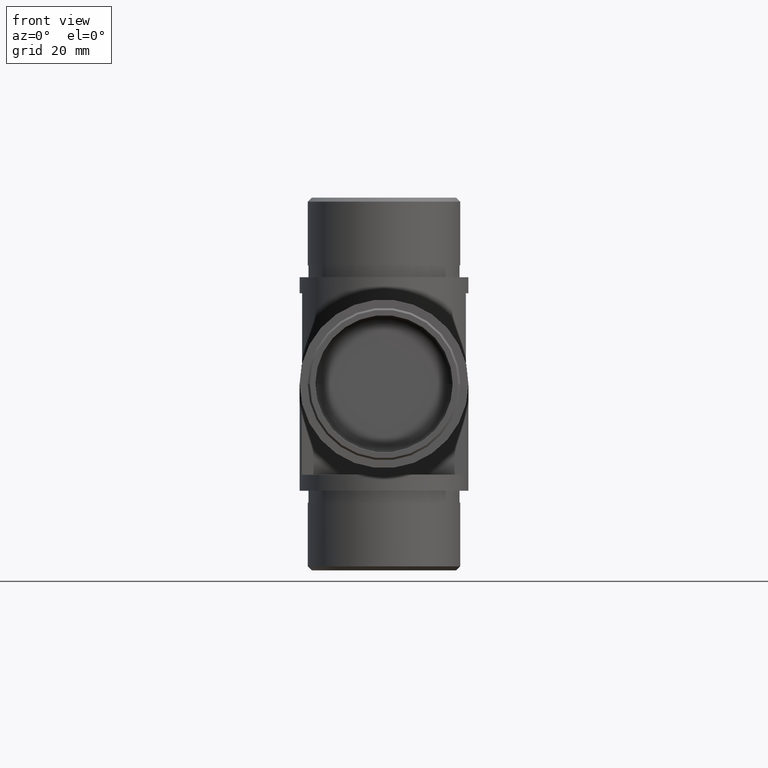
[diagram: clean part render]
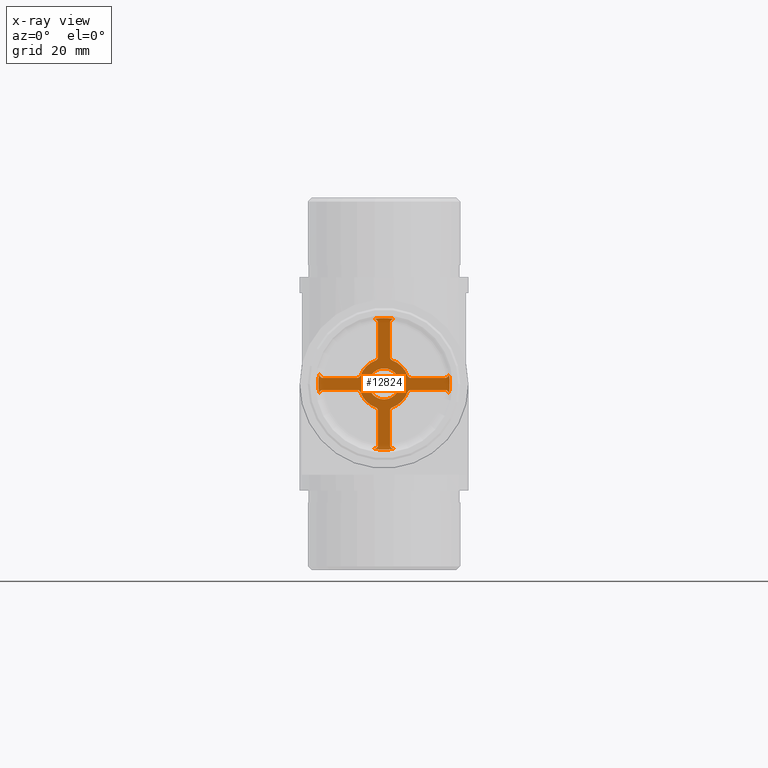
[diagram: x-ray — body ghosted, one internal face saturated and labeled with its STEP entity id]
A machine part, front view, then the same camera in x-ray: the body is ghosted and one INTERNAL B-rep face — a face not visible from any outside direction — is saturated and labeled: STEP entity #12824.
In plain terms, the highlighted planar face has unit normal (0, 1, 0).
Its self-contained STEP definition (entity closure, byte-faithful):
#199 = CIRCLE ( 'NONE', #3451, 1.000000000000000888 ) ;
#214 = EDGE_CURVE ( 'NONE', #2357, #17163, #1232, .T. ) ;
#229 = DIRECTION ( 'NONE',  ( -0.000000000000000000, -1.000000000000000000, -0.000000000000000000 ) ) ;
#329 = CARTESIAN_POINT ( 'NONE',  ( 2.500000000000000000, 4.399999999999987033, 43.09705854077836307 ) ) ;
#563 = DIRECTION ( 'NONE',  ( -1.000000000000000000, 0.000000000000000000, 0.000000000000000000 ) ) ;
#607 = DIRECTION ( 'NONE',  ( -0.000000000000000000, -1.000000000000000000, -0.000000000000000000 ) ) ;
#615 = EDGE_CURVE ( 'NONE', #10342, #14932, #199, .T. ) ;
#671 = DIRECTION ( 'NONE',  ( -0.000000000000000000, -1.000000000000000000, -0.000000000000000000 ) ) ;
#691 = CIRCLE ( 'NONE', #18658, 1.000000000000000888 ) ;
#764 = CARTESIAN_POINT ( 'NONE',  ( -1.500000000000000000, 4.399999999999987033, 42.09705854077835596 ) ) ;
#960 = CIRCLE ( 'NONE', #9515, 1.000000000000000888 ) ;
#990 = VERTEX_POINT ( 'NONE', #16222 ) ;
#1020 = DIRECTION ( 'NONE',  ( 0.000000000000000000, 0.000000000000000000, 1.000000000000000000 ) ) ;
#1075 = CIRCLE ( 'NONE', #6403, 1.000000000000000888 ) ;
#1156 = CARTESIAN_POINT ( 'NONE',  ( 0.000000000000000000, 4.399999999999987033, 26.80000000000000071 ) ) ;
#1169 = AXIS2_PLACEMENT_3D ( 'NONE', #11545, #8238, #16522 ) ;
#1209 = DIRECTION ( 'NONE',  ( -4.184353375069490414E-17, 0.000000000000000000, 1.000000000000000000 ) ) ;
#1214 = VERTEX_POINT ( 'NONE', #2661 ) ;
#1232 = CIRCLE ( 'NONE', #14119, 1.000000000000000888 ) ;
#1239 = DIRECTION ( 'NONE',  ( 0.000000000000000000, 1.000000000000000000, 0.000000000000000000 ) ) ;
#1395 = ORIENTED_EDGE ( 'NONE', *, *, #11933, .T. ) ;
#1443 = DIRECTION ( 'NONE',  ( -0.000000000000000000, -1.000000000000000000, -0.000000000000000000 ) ) ;
#1467 = CARTESIAN_POINT ( 'NONE',  ( -1.500000000000000000, 4.399999999999987033, 19.99467120559190292 ) ) ;
#1478 = EDGE_CURVE ( 'NONE', #10090, #17163, #18030, .T. ) ;
#1525 = CARTESIAN_POINT ( 'NONE',  ( -16.28396554340921654, 4.399999999999987033, 29.46129032258065195 ) ) ;
#1545 = CARTESIAN_POINT ( 'NONE',  ( 0.000000000000000000, 4.399999999999987033, 26.80000000000000071 ) ) ;
#1546 = CARTESIAN_POINT ( 'NONE',  ( 0.000000000000000000, 4.399999999999987033, 26.80000000000000071 ) ) ;
#1739 = DIRECTION ( 'NONE',  ( 0.000000000000000000, 0.000000000000000000, 1.000000000000000000 ) ) ;
#1750 = DIRECTION ( 'NONE',  ( 0.000000000000000000, 1.000000000000000000, 0.000000000000000000 ) ) ;
#1824 = CARTESIAN_POINT ( 'NONE',  ( -6.805328794408099569, 4.399999999999987033, 25.30000000000000071 ) ) ;
#1960 = CIRCLE ( 'NONE', #13795, 1.000000000000000888 ) ;
#2091 = VERTEX_POINT ( 'NONE', #20215 ) ;
#2215 = CARTESIAN_POINT ( 'NONE',  ( -6.805328794408099569, 4.399999999999987033, 29.30000000000000426 ) ) ;
#2229 = DIRECTION ( 'NONE',  ( -0.000000000000000000, -1.000000000000000000, -0.000000000000000000 ) ) ;
#2251 = CARTESIAN_POINT ( 'NONE',  ( 2.500000000000000000, 4.399999999999987033, 42.09705854077835596 ) ) ;
#2274 = DIRECTION ( 'NONE',  ( -0.000000000000000000, -1.000000000000000000, -0.000000000000000000 ) ) ;
#2349 = CARTESIAN_POINT ( 'NONE',  ( 5.866662753800086172, 4.399999999999987033, 28.95517241379310391 ) ) ;
#2357 = VERTEX_POINT ( 'NONE', #1467 ) ;
#2425 = ORIENTED_EDGE ( 'NONE', *, *, #14209, .T. ) ;
#2478 = VERTEX_POINT ( 'NONE', #1824 ) ;
#2542 = VERTEX_POINT ( 'NONE', #12023 ) ;
#2661 = CARTESIAN_POINT ( 'NONE',  ( 16.28396554340921654, 4.399999999999987033, 29.46129032258065195 ) ) ;
#2663 = AXIS2_PLACEMENT_3D ( 'NONE', #1545, #4592, #9593 ) ;
#2664 = CARTESIAN_POINT ( 'NONE',  ( -2.500000000000000000, 4.399999999999987033, 19.99467120559190292 ) ) ;
#2758 = DIRECTION ( 'NONE',  ( 0.000000000000000000, 0.000000000000000000, 1.000000000000000000 ) ) ;
#2909 = CARTESIAN_POINT ( 'NONE',  ( 0.000000000000000000, 4.399999999999987033, 26.80000000000000071 ) ) ;
#2962 = CIRCLE ( 'NONE', #11202, 6.250000000000001776 ) ;
#2988 = DIRECTION ( 'NONE',  ( 0.000000000000000000, 0.000000000000000000, 1.000000000000000000 ) ) ;
#3016 = CARTESIAN_POINT ( 'NONE',  ( 16.28396554340921654, 4.399999999999987033, 24.13870967741934948 ) ) ;
#3090 = EDGE_CURVE ( 'NONE', #14272, #6297, #8728, .T. ) ;
#3187 = VERTEX_POINT ( 'NONE', #1525 ) ;
#3194 = CARTESIAN_POINT ( 'NONE',  ( 2.155172413793103647, 4.399999999999987033, 20.93333724619991543 ) ) ;
#3253 = AXIS2_PLACEMENT_3D ( 'NONE', #17793, #1443, #7986 ) ;
#3254 = EDGE_CURVE ( 'NONE', #12983, #20630, #4285, .T. ) ;
#3259 = CARTESIAN_POINT ( 'NONE',  ( 6.805328794408099569, 4.399999999999987033, 24.29999999999999716 ) ) ;
#3284 = ORIENTED_EDGE ( 'NONE', *, *, #214, .T. ) ;
#3336 = ORIENTED_EDGE ( 'NONE', *, *, #5516, .F. ) ;
#3375 = DIRECTION ( 'NONE',  ( 0.000000000000000000, 0.000000000000000000, 1.000000000000000000 ) ) ;
#3451 = AXIS2_PLACEMENT_3D ( 'NONE', #2215, #607, #17028 ) ;
#3454 = ORIENTED_EDGE ( 'NONE', *, *, #13677, .T. ) ;
#3572 = CARTESIAN_POINT ( 'NONE',  ( 6.805328794408099569, 4.399999999999987033, 25.30000000000000071 ) ) ;
#3609 = DIRECTION ( 'NONE',  ( 0.000000000000000000, -0.000000000000000000, 1.000000000000000000 ) ) ;
#3620 = CIRCLE ( 'NONE', #19741, 16.50000000000000355 ) ;
#3640 = LINE ( 'NONE', #8051, #19939 ) ;
#3691 = DIRECTION ( 'NONE',  ( 0.000000000000000000, 0.000000000000000000, 1.000000000000000000 ) ) ;
#3742 = DIRECTION ( 'NONE',  ( 0.000000000000000000, 0.000000000000000000, 1.000000000000000000 ) ) ;
#3831 = EDGE_CURVE ( 'NONE', #9212, #12983, #12310, .T. ) ;
#4041 = AXIS2_PLACEMENT_3D ( 'NONE', #14907, #9881, #16569 ) ;
#4075 = VERTEX_POINT ( 'NONE', #329 ) ;
#4085 = CARTESIAN_POINT ( 'NONE',  ( -1.500000000000000000, 4.399999999999987033, 11.50294145922164546 ) ) ;
#4241 = CARTESIAN_POINT ( 'NONE',  ( 1.500000000000000000, 4.399999999999987033, 0.000000000000000000 ) ) ;
#4255 = CARTESIAN_POINT ( 'NONE',  ( 2.500000000000000000, 4.399999999999987033, 42.09705854077835596 ) ) ;
#4285 = CIRCLE ( 'NONE', #20507, 1.000000000000000888 ) ;
#4330 = CIRCLE ( 'NONE', #20715, 1.000000000000000888 ) ;
#4338 = CIRCLE ( 'NONE', #9110, 3.900000000000014566 ) ;
#4392 = EDGE_CURVE ( 'NONE', #12145, #14078, #18645, .T. ) ;
#4522 = CARTESIAN_POINT ( 'NONE',  ( 0.000000000000000000, 4.399999999999987033, 26.80000000000000071 ) ) ;
#4524 = EDGE_CURVE ( 'NONE', #11375, #10540, #12405, .T. ) ;
#4557 = DIRECTION ( 'NONE',  ( -0.000000000000000000, -1.000000000000000000, -0.000000000000000000 ) ) ;
#4588 = ORIENTED_EDGE ( 'NONE', *, *, #16848, .T. ) ;
#4592 = DIRECTION ( 'NONE',  ( 0.000000000000000000, 1.000000000000000000, 0.000000000000000000 ) ) ;
#4866 = CARTESIAN_POINT ( 'NONE',  ( 0.000000000000000000, 4.399999999999987033, 26.80000000000000071 ) ) ;
#4999 = DIRECTION ( 'NONE',  ( -1.776356839400249873E-15, 0.000000000000000000, 1.000000000000000000 ) ) ;
#5011 = CARTESIAN_POINT ( 'NONE',  ( 1.499999999999999556, 4.399999999999987033, 33.60532879440810206 ) ) ;
#5071 = ORIENTED_EDGE ( 'NONE', *, *, #18911, .T. ) ;
#5148 = CARTESIAN_POINT ( 'NONE',  ( 0.000000000000000000, 4.399999999999987033, 26.80000000000000071 ) ) ;
#5155 = AXIS2_PLACEMENT_3D ( 'NONE', #8776, #6899, #3691 ) ;
#5196 = CIRCLE ( 'NONE', #14701, 1.000000000000000888 ) ;
#5252 = CARTESIAN_POINT ( 'NONE',  ( 0.000000000000000000, 4.399999999999987033, 26.80000000000000071 ) ) ;
#5328 = EDGE_CURVE ( 'NONE', #15475, #6430, #16509, .T. ) ;
#5443 = AXIS2_PLACEMENT_3D ( 'NONE', #1546, #16578, #6483 ) ;
#5516 = EDGE_CURVE ( 'NONE', #19845, #9931, #8016, .T. ) ;
#5620 = EDGE_CURVE ( 'NONE', #5775, #1214, #16253, .T. ) ;
#5659 = CARTESIAN_POINT ( 'NONE',  ( 0.000000000000000000, 4.399999999999987033, 25.30000000000000071 ) ) ;
#5693 = AXIS2_PLACEMENT_3D ( 'NONE', #4522, #16079, #11177 ) ;
#5707 = CARTESIAN_POINT ( 'NONE',  ( 0.000000000000000000, 4.399999999999987033, 28.30000000000000071 ) ) ;
#5775 = VERTEX_POINT ( 'NONE', #10846 ) ;
#5802 = VERTEX_POINT ( 'NONE', #10706 ) ;
#5810 = VERTEX_POINT ( 'NONE', #15683 ) ;
#5867 = AXIS2_PLACEMENT_3D ( 'NONE', #11580, #6751, #4999 ) ;
#6181 = CARTESIAN_POINT ( 'NONE',  ( 1.500000000000000000, 4.399999999999987033, 42.09705854077835596 ) ) ;
#6257 = LINE ( 'NONE', #6569, #14771 ) ;
#6297 = VERTEX_POINT ( 'NONE', #17177 ) ;
#6373 = CARTESIAN_POINT ( 'NONE',  ( -2.661290322580645462, 4.399999999999987033, 10.51603445659078240 ) ) ;
#6375 = ORIENTED_EDGE ( 'NONE', *, *, #4524, .T. ) ;
#6403 = AXIS2_PLACEMENT_3D ( 'NONE', #15908, #4557, #2758 ) ;
#6405 = EDGE_CURVE ( 'NONE', #21089, #14663, #14933, .T. ) ;
#6430 = VERTEX_POINT ( 'NONE', #3572 ) ;
#6483 = DIRECTION ( 'NONE',  ( 2.664535259100375303E-15, 0.000000000000000000, 1.000000000000000000 ) ) ;
#6502 = DIRECTION ( 'NONE',  ( -0.000000000000000000, -1.000000000000000000, -0.000000000000000000 ) ) ;
#6569 = CARTESIAN_POINT ( 'NONE',  ( 1.499999999999998224, 4.399999999999987033, 0.000000000000000000 ) ) ;
#6646 = ORIENTED_EDGE ( 'NONE', *, *, #20550, .T. ) ;
#6751 = DIRECTION ( 'NONE',  ( -0.000000000000000000, -1.000000000000000000, -0.000000000000000000 ) ) ;
#6824 = AXIS2_PLACEMENT_3D ( 'NONE', #12175, #2274, #1020 ) ;
#6828 = ORIENTED_EDGE ( 'NONE', *, *, #12697, .T. ) ;
#6899 = DIRECTION ( 'NONE',  ( -0.000000000000000000, -1.000000000000000000, -0.000000000000000000 ) ) ;
#6927 = EDGE_CURVE ( 'NONE', #6430, #9931, #4330, .T. ) ;
#7106 = EDGE_LOOP ( 'NONE', ( #19347, #7364 ) ) ;
#7139 = DIRECTION ( 'NONE',  ( -8.673617379884027583E-16, 0.000000000000000000, 1.000000000000000000 ) ) ;
#7166 = LINE ( 'NONE', #15020, #12811 ) ;
#7268 = EDGE_CURVE ( 'NONE', #5775, #5802, #9771, .T. ) ;
#7287 = ORIENTED_EDGE ( 'NONE', *, *, #14072, .T. ) ;
#7364 = ORIENTED_EDGE ( 'NONE', *, *, #13732, .T. ) ;
#7510 = CARTESIAN_POINT ( 'NONE',  ( 2.500000000000000000, 4.399999999999987033, 33.60532879440810206 ) ) ;
#7547 = ORIENTED_EDGE ( 'NONE', *, *, #18175, .T. ) ;
#7678 = AXIS2_PLACEMENT_3D ( 'NONE', #14714, #18058, #8176 ) ;
#7865 = ORIENTED_EDGE ( 'NONE', *, *, #6927, .T. ) ;
#7986 = DIRECTION ( 'NONE',  ( 0.000000000000000000, 0.000000000000000000, 1.000000000000000000 ) ) ;
#8016 = CIRCLE ( 'NONE', #5867, 6.250000000000001776 ) ;
#8051 = CARTESIAN_POINT ( 'NONE',  ( 0.000000000000000000, 4.399999999999987033, 25.30000000000000071 ) ) ;
#8101 = CARTESIAN_POINT ( 'NONE',  ( 2.661290322580645462, 4.399999999999987033, 10.51603445659078240 ) ) ;
#8176 = DIRECTION ( 'NONE',  ( 0.000000000000000000, 0.000000000000000000, 1.000000000000000000 ) ) ;
#8238 = DIRECTION ( 'NONE',  ( -0.000000000000000000, -1.000000000000000000, -0.000000000000000000 ) ) ;
#8245 = CARTESIAN_POINT ( 'NONE',  ( -1.500000000000000000, 4.399999999999987033, 0.000000000000000000 ) ) ;
#8390 = VERTEX_POINT ( 'NONE', #8101 ) ;
#8417 = DIRECTION ( 'NONE',  ( -0.000000000000000000, -1.000000000000000000, -0.000000000000000000 ) ) ;
#8432 = DIRECTION ( 'NONE',  ( -0.000000000000000000, -1.000000000000000000, -0.000000000000000000 ) ) ;
#8457 = VECTOR ( 'NONE', #1209, 1000.000000000000000 ) ;
#8489 = ORIENTED_EDGE ( 'NONE', *, *, #5328, .T. ) ;
#8497 = EDGE_CURVE ( 'NONE', #2091, #14932, #2962, .T. ) ;
#8499 = DIRECTION ( 'NONE',  ( -3.469446951953611033E-15, 0.000000000000000000, 1.000000000000000000 ) ) ;
#8633 = ORIENTED_EDGE ( 'NONE', *, *, #16678, .T. ) ;
#8658 = AXIS2_PLACEMENT_3D ( 'NONE', #2251, #20307, #8925 ) ;
#8724 = VERTEX_POINT ( 'NONE', #4085 ) ;
#8728 = CIRCLE ( 'NONE', #6824, 1.000000000000000888 ) ;
#8749 = VECTOR ( 'NONE', #563, 1000.000000000000000 ) ;
#8776 = CARTESIAN_POINT ( 'NONE',  ( 15.29705854077835347, 4.399999999999987033, 29.30000000000000426 ) ) ;
#8925 = DIRECTION ( 'NONE',  ( 4.813857645835635269E-14, 0.000000000000000000, 1.000000000000000000 ) ) ;
#8971 = CARTESIAN_POINT ( 'NONE',  ( -2.500000000000000000, 4.399999999999987033, 11.50294145922164546 ) ) ;
#9084 = CIRCLE ( 'NONE', #19340, 16.50000000000000355 ) ;
#9110 = AXIS2_PLACEMENT_3D ( 'NONE', #12132, #2229, #3742 ) ;
#9198 = ORIENTED_EDGE ( 'NONE', *, *, #16265, .T. ) ;
#9212 = VERTEX_POINT ( 'NONE', #17432 ) ;
#9235 = ORIENTED_EDGE ( 'NONE', *, *, #15704, .T. ) ;
#9306 = AXIS2_PLACEMENT_3D ( 'NONE', #1156, #14455, #11223 ) ;
#9337 = CIRCLE ( 'NONE', #9756, 1.000000000000000888 ) ;
#9510 = ORIENTED_EDGE ( 'NONE', *, *, #19757, .T. ) ;
#9515 = AXIS2_PLACEMENT_3D ( 'NONE', #8971, #18926, #20501 ) ;
#9573 = AXIS2_PLACEMENT_3D ( 'NONE', #2909, #1239, #16271 ) ;
#9579 = CARTESIAN_POINT ( 'NONE',  ( -15.29705854077835347, 4.399999999999987033, 29.30000000000000426 ) ) ;
#9593 = DIRECTION ( 'NONE',  ( 0.000000000000000000, 0.000000000000000000, 1.000000000000000000 ) ) ;
#9598 = AXIS2_PLACEMENT_3D ( 'NONE', #13130, #6502, #21150 ) ;
#9600 = CARTESIAN_POINT ( 'NONE',  ( -2.500000000000000000, 4.399999999999987033, 43.09705854077836307 ) ) ;
#9756 = AXIS2_PLACEMENT_3D ( 'NONE', #21406, #229, #14836 ) ;
#9771 = LINE ( 'NONE', #5707, #8749 ) ;
#9828 = LINE ( 'NONE', #8245, #18092 ) ;
#9881 = DIRECTION ( 'NONE',  ( 0.000000000000000000, 1.000000000000000000, 0.000000000000000000 ) ) ;
#9931 = VERTEX_POINT ( 'NONE', #17015 ) ;
#9970 = EDGE_CURVE ( 'NONE', #990, #2542, #17956, .T. ) ;
#9978 = DIRECTION ( 'NONE',  ( 4.184353375069490414E-17, -0.000000000000000000, 1.000000000000000000 ) ) ;
#10090 = VERTEX_POINT ( 'NONE', #16631 ) ;
#10189 = ORIENTED_EDGE ( 'NONE', *, *, #4392, .F. ) ;
#10228 = DIRECTION ( 'NONE',  ( 0.000000000000000000, 1.000000000000000000, 0.000000000000000000 ) ) ;
#10342 = VERTEX_POINT ( 'NONE', #13813 ) ;
#10375 = CIRCLE ( 'NONE', #1169, 1.000000000000000888 ) ;
#10479 = CARTESIAN_POINT ( 'NONE',  ( 2.155172413793105424, 4.399999999999987033, 32.66666275380008244 ) ) ;
#10481 = ORIENTED_EDGE ( 'NONE', *, *, #21224, .T. ) ;
#10540 = VERTEX_POINT ( 'NONE', #6373 ) ;
#10620 = CIRCLE ( 'NONE', #17524, 1.000000000000000888 ) ;
#10666 = CIRCLE ( 'NONE', #7678, 3.900000000000014566 ) ;
#10706 = CARTESIAN_POINT ( 'NONE',  ( 6.805328794408099569, 4.399999999999987033, 28.30000000000000071 ) ) ;
#10828 = EDGE_CURVE ( 'NONE', #8390, #11375, #12220, .T. ) ;
#10835 = DIRECTION ( 'NONE',  ( -0.000000000000000000, -1.000000000000000000, -0.000000000000000000 ) ) ;
#10846 = CARTESIAN_POINT ( 'NONE',  ( 15.29705854077835347, 4.399999999999987033, 28.30000000000000071 ) ) ;
#11044 = DIRECTION ( 'NONE',  ( 0.000000000000000000, 0.000000000000000000, 1.000000000000000000 ) ) ;
#11098 = ORIENTED_EDGE ( 'NONE', *, *, #21016, .T. ) ;
#11177 = DIRECTION ( 'NONE',  ( 0.000000000000000000, 0.000000000000000000, 1.000000000000000000 ) ) ;
#11202 = AXIS2_PLACEMENT_3D ( 'NONE', #5252, #18348, #16816 ) ;
#11223 = DIRECTION ( 'NONE',  ( 0.000000000000000000, 0.000000000000000000, 1.000000000000000000 ) ) ;
#11375 = VERTEX_POINT ( 'NONE', #13911 ) ;
#11414 = VERTEX_POINT ( 'NONE', #3016 ) ;
#11545 = CARTESIAN_POINT ( 'NONE',  ( 6.805328794408099569, 4.399999999999987033, 29.30000000000000426 ) ) ;
#11580 = CARTESIAN_POINT ( 'NONE',  ( 0.000000000000000000, 4.399999999999987033, 26.80000000000000071 ) ) ;
#11706 = ORIENTED_EDGE ( 'NONE', *, *, #3090, .T. ) ;
#11930 = AXIS2_PLACEMENT_3D ( 'NONE', #18434, #13502, #3609 ) ;
#11933 = EDGE_CURVE ( 'NONE', #4075, #16694, #16367, .T. ) ;
#11945 = ORIENTED_EDGE ( 'NONE', *, *, #615, .T. ) ;
#11972 = ORIENTED_EDGE ( 'NONE', *, *, #6405, .F. ) ;
#12023 = CARTESIAN_POINT ( 'NONE',  ( 2.661290322580645906, 4.399999999999987033, 43.08396554340922080 ) ) ;
#12132 = CARTESIAN_POINT ( 'NONE',  ( 0.000000000000000000, 4.399999999999987033, 26.80000000000000071 ) ) ;
#12145 = VERTEX_POINT ( 'NONE', #18407 ) ;
#12175 = CARTESIAN_POINT ( 'NONE',  ( -15.29705854077835347, 4.399999999999987033, 24.29999999999999716 ) ) ;
#12220 = CIRCLE ( 'NONE', #5693, 16.50000000000000355 ) ;
#12310 = LINE ( 'NONE', #21022, #8457 ) ;
#12311 = ORIENTED_EDGE ( 'NONE', *, *, #15894, .T. ) ;
#12405 = CIRCLE ( 'NONE', #2663, 16.50000000000000355 ) ;
#12697 = EDGE_CURVE ( 'NONE', #12145, #8390, #1075, .T. ) ;
#12703 = CIRCLE ( 'NONE', #4041, 16.50000000000000355 ) ;
#12811 = VECTOR ( 'NONE', #18225, 1000.000000000000000 ) ;
#12824 = ADVANCED_FACE ( 'NONE', ( #19218, #18442 ), #16761, .T. ) ;
#12945 = ORIENTED_EDGE ( 'NONE', *, *, #7268, .F. ) ;
#12983 = VERTEX_POINT ( 'NONE', #764 ) ;
#13130 = CARTESIAN_POINT ( 'NONE',  ( -2.500000000000000000, 4.399999999999987033, 42.09705854077835596 ) ) ;
#13227 = EDGE_CURVE ( 'NONE', #18184, #16694, #6257, .T. ) ;
#13257 = VERTEX_POINT ( 'NONE', #18051 ) ;
#13502 = DIRECTION ( 'NONE',  ( 0.000000000000000000, 1.000000000000000000, 0.000000000000000000 ) ) ;
#13513 = ORIENTED_EDGE ( 'NONE', *, *, #10828, .T. ) ;
#13677 = EDGE_CURVE ( 'NONE', #20630, #5810, #14251, .T. ) ;
#13732 = EDGE_CURVE ( 'NONE', #17716, #13257, #10666, .T. ) ;
#13795 = AXIS2_PLACEMENT_3D ( 'NONE', #9579, #14460, #19607 ) ;
#13813 = CARTESIAN_POINT ( 'NONE',  ( -6.805328794408099569, 4.399999999999987033, 28.30000000000000071 ) ) ;
#13911 = CARTESIAN_POINT ( 'NONE',  ( 2.020667218593133494E-15, 4.399999999999987033, 10.29999999999999716 ) ) ;
#13916 = CIRCLE ( 'NONE', #3253, 1.000000000000000888 ) ;
#14072 = EDGE_CURVE ( 'NONE', #5810, #990, #12703, .T. ) ;
#14078 = VERTEX_POINT ( 'NONE', #21329 ) ;
#14119 = AXIS2_PLACEMENT_3D ( 'NONE', #2664, #10835, #14146 ) ;
#14120 = DIRECTION ( 'NONE',  ( 0.000000000000000000, 0.000000000000000000, 1.000000000000000000 ) ) ;
#14146 = DIRECTION ( 'NONE',  ( -1.734723475976805517E-15, 0.000000000000000000, 1.000000000000000000 ) ) ;
#14209 = EDGE_CURVE ( 'NONE', #11414, #15475, #5196, .T. ) ;
#14251 = CIRCLE ( 'NONE', #9598, 1.000000000000000888 ) ;
#14272 = VERTEX_POINT ( 'NONE', #20250 ) ;
#14455 = DIRECTION ( 'NONE',  ( -0.000000000000000000, -1.000000000000000000, -0.000000000000000000 ) ) ;
#14460 = DIRECTION ( 'NONE',  ( -0.000000000000000000, -1.000000000000000000, -0.000000000000000000 ) ) ;
#14468 = EDGE_CURVE ( 'NONE', #10342, #20962, #7166, .T. ) ;
#14663 = VERTEX_POINT ( 'NONE', #10479 ) ;
#14701 = AXIS2_PLACEMENT_3D ( 'NONE', #18319, #8432, #8499 ) ;
#14714 = CARTESIAN_POINT ( 'NONE',  ( 0.000000000000000000, 4.399999999999987033, 26.80000000000000071 ) ) ;
#14771 = VECTOR ( 'NONE', #9978, 1000.000000000000000 ) ;
#14816 = CARTESIAN_POINT ( 'NONE',  ( 15.29705854077835347, 4.399999999999987033, 25.30000000000000071 ) ) ;
#14836 = DIRECTION ( 'NONE',  ( 1.734723475976805517E-15, 0.000000000000000000, 1.000000000000000000 ) ) ;
#14907 = CARTESIAN_POINT ( 'NONE',  ( 0.000000000000000000, 4.399999999999987033, 26.80000000000000071 ) ) ;
#14932 = VERTEX_POINT ( 'NONE', #16085 ) ;
#14933 = CIRCLE ( 'NONE', #5443, 6.250000000000001776 ) ;
#15020 = CARTESIAN_POINT ( 'NONE',  ( 0.000000000000000000, 4.399999999999987033, 28.30000000000000071 ) ) ;
#15288 = CIRCLE ( 'NONE', #8658, 1.000000000000000888 ) ;
#15475 = VERTEX_POINT ( 'NONE', #14816 ) ;
#15494 = CARTESIAN_POINT ( 'NONE',  ( 2.500000000000000000, 4.399999999999987033, 19.99467120559190292 ) ) ;
#15683 = CARTESIAN_POINT ( 'NONE',  ( -2.661290322580645906, 4.399999999999987033, 43.08396554340922080 ) ) ;
#15704 = EDGE_CURVE ( 'NONE', #2542, #4075, #15288, .T. ) ;
#15863 = ORIENTED_EDGE ( 'NONE', *, *, #8497, .F. ) ;
#15864 = DIRECTION ( 'NONE',  ( -0.000000000000000000, -1.000000000000000000, -0.000000000000000000 ) ) ;
#15894 = EDGE_CURVE ( 'NONE', #2478, #14272, #3640, .T. ) ;
#15908 = CARTESIAN_POINT ( 'NONE',  ( 2.500000000000000000, 4.399999999999987033, 11.50294145922164546 ) ) ;
#16079 = DIRECTION ( 'NONE',  ( 0.000000000000000000, 1.000000000000000000, 0.000000000000000000 ) ) ;
#16085 = CARTESIAN_POINT ( 'NONE',  ( -5.866662753800086172, 4.399999999999987033, 28.95517241379310391 ) ) ;
#16147 = ORIENTED_EDGE ( 'NONE', *, *, #3831, .T. ) ;
#16222 = CARTESIAN_POINT ( 'NONE',  ( 0.000000000000000000, 4.399999999999987033, 43.30000000000000426 ) ) ;
#16253 = CIRCLE ( 'NONE', #5155, 1.000000000000000888 ) ;
#16265 = EDGE_CURVE ( 'NONE', #21089, #5802, #10375, .T. ) ;
#16271 = DIRECTION ( 'NONE',  ( 0.000000000000000000, 0.000000000000000000, 1.000000000000000000 ) ) ;
#16329 = DIRECTION ( 'NONE',  ( -1.000000000000000000, 0.000000000000000000, 0.000000000000000000 ) ) ;
#16367 = CIRCLE ( 'NONE', #19409, 1.000000000000000888 ) ;
#16509 = LINE ( 'NONE', #5659, #20142 ) ;
#16522 = DIRECTION ( 'NONE',  ( -8.673617379884027583E-16, 0.000000000000000000, 1.000000000000000000 ) ) ;
#16569 = DIRECTION ( 'NONE',  ( 0.000000000000000000, 0.000000000000000000, 1.000000000000000000 ) ) ;
#16578 = DIRECTION ( 'NONE',  ( -0.000000000000000000, -1.000000000000000000, -0.000000000000000000 ) ) ;
#16631 = CARTESIAN_POINT ( 'NONE',  ( -5.866662753800086172, 4.399999999999987033, 24.64482758620689751 ) ) ;
#16678 = EDGE_CURVE ( 'NONE', #18184, #14663, #10620, .T. ) ;
#16694 = VERTEX_POINT ( 'NONE', #6181 ) ;
#16761 = PLANE ( 'NONE',  #11930 ) ;
#16816 = DIRECTION ( 'NONE',  ( 0.000000000000000000, 0.000000000000000000, 1.000000000000000000 ) ) ;
#16848 = EDGE_CURVE ( 'NONE', #1214, #11414, #3620, .T. ) ;
#16881 = EDGE_CURVE ( 'NONE', #6297, #3187, #9084, .T. ) ;
#17015 = CARTESIAN_POINT ( 'NONE',  ( 5.866662753800086172, 4.399999999999987033, 24.64482758620689751 ) ) ;
#17028 = DIRECTION ( 'NONE',  ( 8.673617379884027583E-16, 0.000000000000000000, 1.000000000000000000 ) ) ;
#17163 = VERTEX_POINT ( 'NONE', #21232 ) ;
#17177 = CARTESIAN_POINT ( 'NONE',  ( -16.28396554340921654, 4.399999999999987033, 24.13870967741934948 ) ) ;
#17432 = CARTESIAN_POINT ( 'NONE',  ( -1.499999999999999556, 4.399999999999987033, 33.60532879440810206 ) ) ;
#17524 = AXIS2_PLACEMENT_3D ( 'NONE', #7510, #15864, #14120 ) ;
#17546 = DIRECTION ( 'NONE',  ( -0.000000000000000000, -1.000000000000000000, -0.000000000000000000 ) ) ;
#17706 = ORIENTED_EDGE ( 'NONE', *, *, #14468, .F. ) ;
#17716 = VERTEX_POINT ( 'NONE', #20487 ) ;
#17793 = CARTESIAN_POINT ( 'NONE',  ( -2.500000000000000000, 4.399999999999987033, 33.60532879440810206 ) ) ;
#17956 = CIRCLE ( 'NONE', #9573, 16.50000000000000355 ) ;
#18030 = CIRCLE ( 'NONE', #9306, 6.250000000000001776 ) ;
#18051 = CARTESIAN_POINT ( 'NONE',  ( 0.000000000000000000, 4.399999999999987033, 30.69999999999999929 ) ) ;
#18058 = DIRECTION ( 'NONE',  ( -0.000000000000000000, -1.000000000000000000, -0.000000000000000000 ) ) ;
#18092 = VECTOR ( 'NONE', #3375, 1000.000000000000000 ) ;
#18095 = DIRECTION ( 'NONE',  ( 0.000000000000000000, 0.000000000000000000, 1.000000000000000000 ) ) ;
#18101 = DIRECTION ( 'NONE',  ( 0.000000000000000000, 0.000000000000000000, 1.000000000000000000 ) ) ;
#18175 = EDGE_CURVE ( 'NONE', #10090, #2478, #9337, .T. ) ;
#18184 = VERTEX_POINT ( 'NONE', #5011 ) ;
#18225 = DIRECTION ( 'NONE',  ( -1.000000000000000000, 0.000000000000000000, 0.000000000000000000 ) ) ;
#18319 = CARTESIAN_POINT ( 'NONE',  ( 15.29705854077835347, 4.399999999999987033, 24.29999999999999716 ) ) ;
#18348 = DIRECTION ( 'NONE',  ( -0.000000000000000000, -1.000000000000000000, -0.000000000000000000 ) ) ;
#18407 = CARTESIAN_POINT ( 'NONE',  ( 1.500000000000000000, 4.399999999999987033, 11.50294145922164546 ) ) ;
#18434 = CARTESIAN_POINT ( 'NONE',  ( 0.000000000000000000, 4.399999999999987033, 26.80000000000000071 ) ) ;
#18442 = FACE_OUTER_BOUND ( 'NONE', #19412, .T. ) ;
#18462 = ORIENTED_EDGE ( 'NONE', *, *, #1478, .F. ) ;
#18537 = DIRECTION ( 'NONE',  ( 0.000000000000000000, 0.000000000000000000, 1.000000000000000000 ) ) ;
#18556 = CARTESIAN_POINT ( 'NONE',  ( -15.29705854077835347, 4.399999999999987033, 28.30000000000000071 ) ) ;
#18603 = ORIENTED_EDGE ( 'NONE', *, *, #16881, .T. ) ;
#18645 = LINE ( 'NONE', #4241, #19915 ) ;
#18658 = AXIS2_PLACEMENT_3D ( 'NONE', #15494, #671, #7139 ) ;
#18815 = ORIENTED_EDGE ( 'NONE', *, *, #3254, .T. ) ;
#18911 = EDGE_CURVE ( 'NONE', #8724, #2357, #9828, .T. ) ;
#18926 = DIRECTION ( 'NONE',  ( -0.000000000000000000, -1.000000000000000000, -0.000000000000000000 ) ) ;
#18971 = DIRECTION ( 'NONE',  ( -1.000000000000000000, 0.000000000000000000, 0.000000000000000000 ) ) ;
#19218 = FACE_BOUND ( 'NONE', #7106, .T. ) ;
#19340 = AXIS2_PLACEMENT_3D ( 'NONE', #4866, #10228, #18537 ) ;
#19347 = ORIENTED_EDGE ( 'NONE', *, *, #20532, .T. ) ;
#19409 = AXIS2_PLACEMENT_3D ( 'NONE', #4255, #17546, #11044 ) ;
#19412 = EDGE_LOOP ( 'NONE', ( #15863, #9510, #16147, #18815, #3454, #7287, #20103, #9235, #1395, #20834, #8633, #11972, #9198, #12945, #20090, #4588, #2425, #8489, #7865, #3336, #11098, #10189, #6828, #13513, #6375, #6646, #5071, #3284, #18462, #7547, #12311, #11706, #18603, #10481, #17706, #11945 ) ) ;
#19607 = DIRECTION ( 'NONE',  ( -1.734723475976805517E-15, 0.000000000000000000, 1.000000000000000000 ) ) ;
#19676 = CARTESIAN_POINT ( 'NONE',  ( -2.500000000000000000, 4.399999999999987033, 42.09705854077835596 ) ) ;
#19741 = AXIS2_PLACEMENT_3D ( 'NONE', #5148, #1750, #18101 ) ;
#19757 = EDGE_CURVE ( 'NONE', #2091, #9212, #13916, .T. ) ;
#19845 = VERTEX_POINT ( 'NONE', #3194 ) ;
#19915 = VECTOR ( 'NONE', #2988, 1000.000000000000000 ) ;
#19939 = VECTOR ( 'NONE', #16329, 1000.000000000000000 ) ;
#20090 = ORIENTED_EDGE ( 'NONE', *, *, #5620, .T. ) ;
#20103 = ORIENTED_EDGE ( 'NONE', *, *, #9970, .T. ) ;
#20142 = VECTOR ( 'NONE', #18971, 1000.000000000000000 ) ;
#20215 = CARTESIAN_POINT ( 'NONE',  ( -2.155172413793105424, 4.399999999999987033, 32.66666275380008244 ) ) ;
#20250 = CARTESIAN_POINT ( 'NONE',  ( -15.29705854077835347, 4.399999999999987033, 25.30000000000000071 ) ) ;
#20307 = DIRECTION ( 'NONE',  ( -0.000000000000000000, -1.000000000000000000, -0.000000000000000000 ) ) ;
#20487 = CARTESIAN_POINT ( 'NONE',  ( 4.776122516674674328E-16, 4.399999999999987033, 22.90000000000000213 ) ) ;
#20501 = DIRECTION ( 'NONE',  ( 1.734723475976805517E-15, 0.000000000000000000, 1.000000000000000000 ) ) ;
#20507 = AXIS2_PLACEMENT_3D ( 'NONE', #19676, #21395, #18095 ) ;
#20532 = EDGE_CURVE ( 'NONE', #13257, #17716, #4338, .T. ) ;
#20550 = EDGE_CURVE ( 'NONE', #10540, #8724, #960, .T. ) ;
#20630 = VERTEX_POINT ( 'NONE', #9600 ) ;
#20715 = AXIS2_PLACEMENT_3D ( 'NONE', #3259, #8417, #1739 ) ;
#20834 = ORIENTED_EDGE ( 'NONE', *, *, #13227, .F. ) ;
#20962 = VERTEX_POINT ( 'NONE', #18556 ) ;
#21016 = EDGE_CURVE ( 'NONE', #19845, #14078, #691, .T. ) ;
#21022 = CARTESIAN_POINT ( 'NONE',  ( -1.499999999999998224, 4.399999999999987033, 0.000000000000000000 ) ) ;
#21089 = VERTEX_POINT ( 'NONE', #2349 ) ;
#21150 = DIRECTION ( 'NONE',  ( 0.000000000000000000, 0.000000000000000000, 1.000000000000000000 ) ) ;
#21224 = EDGE_CURVE ( 'NONE', #3187, #20962, #1960, .T. ) ;
#21232 = CARTESIAN_POINT ( 'NONE',  ( -2.155172413793103647, 4.399999999999987033, 20.93333724619991543 ) ) ;
#21329 = CARTESIAN_POINT ( 'NONE',  ( 1.500000000000000000, 4.399999999999987033, 19.99467120559190292 ) ) ;
#21395 = DIRECTION ( 'NONE',  ( -0.000000000000000000, -1.000000000000000000, -0.000000000000000000 ) ) ;
#21406 = CARTESIAN_POINT ( 'NONE',  ( -6.805328794408099569, 4.399999999999987033, 24.29999999999999716 ) ) ;